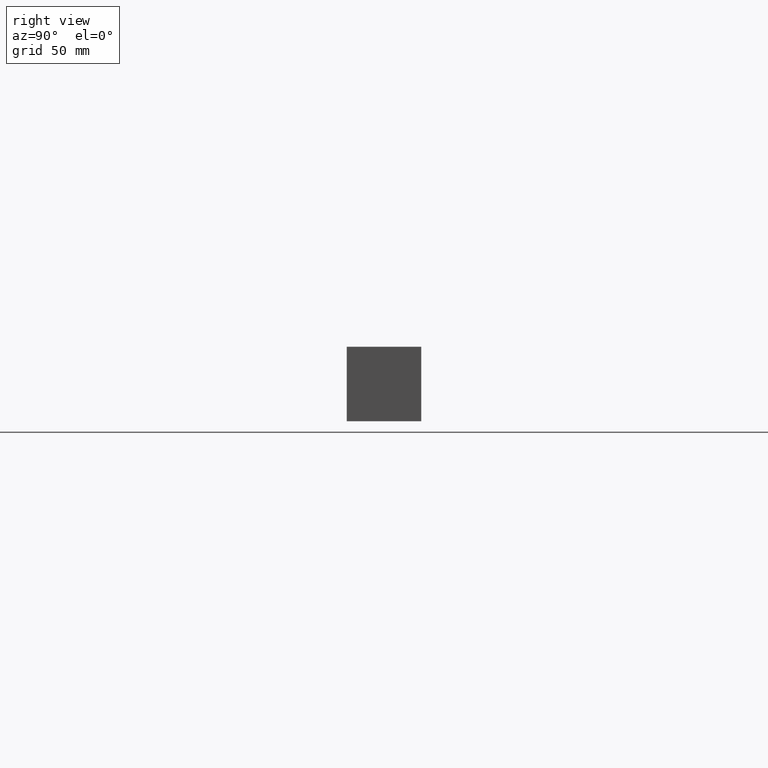
[diagram: clean part render]
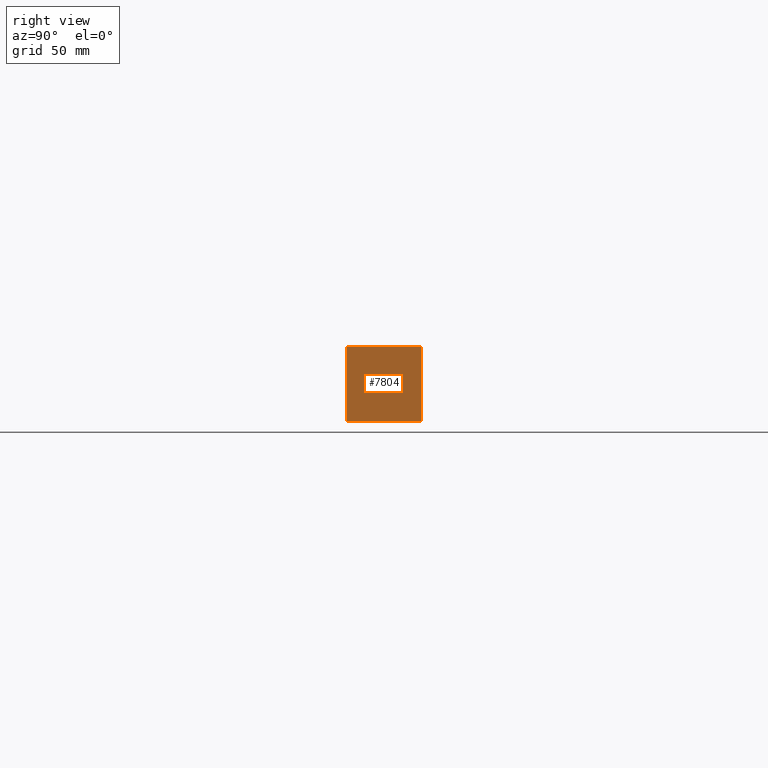
[diagram: same view with one face highlighted and labeled with its STEP entity id]
A machine part, right view. The second image highlights one B-rep face of the part: STEP entity #7804.
In plain terms, the highlighted planar face has unit normal (1, 0, 0).
Its self-contained STEP definition (entity closure, byte-faithful):
#512=PLANE('',#8245);
#912=FACE_OUTER_BOUND('',#1373,.T.);
#1373=EDGE_LOOP('',(#6946,#6947,#6948,#6949));
#1646=LINE('',#12151,#2349);
#2090=LINE('',#13504,#2793);
#2091=LINE('',#13507,#2794);
#2092=LINE('',#13508,#2795);
#2349=VECTOR('',#8626,10.);
#2793=VECTOR('',#9796,10.);
#2794=VECTOR('',#9799,10.);
#2795=VECTOR('',#9800,10.);
#3340=VERTEX_POINT('',#12148);
#3341=VERTEX_POINT('',#12150);
#3759=VERTEX_POINT('',#13502);
#3760=VERTEX_POINT('',#13506);
#4230=EDGE_CURVE('',#3340,#3341,#1646,.T.);
#4832=EDGE_CURVE('',#3759,#3341,#2090,.T.);
#4833=EDGE_CURVE('',#3760,#3759,#2091,.T.);
#4834=EDGE_CURVE('',#3760,#3340,#2092,.T.);
#6946=ORIENTED_EDGE('',*,*,#4833,.T.);
#6947=ORIENTED_EDGE('',*,*,#4832,.T.);
#6948=ORIENTED_EDGE('',*,*,#4230,.F.);
#6949=ORIENTED_EDGE('',*,*,#4834,.F.);
#7804=ADVANCED_FACE('',(#912),#512,.T.);
#8245=AXIS2_PLACEMENT_3D('',#13505,#9797,#9798);
#8626=DIRECTION('',(0.,1.,0.));
#9796=DIRECTION('',(0.,0.,1.));
#9797=DIRECTION('center_axis',(1.,0.,0.));
#9798=DIRECTION('ref_axis',(0.,1.,0.));
#9799=DIRECTION('',(0.,1.,0.));
#9800=DIRECTION('',(0.,0.,1.));
#12148=CARTESIAN_POINT('',(431.8,0.,44.45));
#12150=CARTESIAN_POINT('',(431.8,44.45,44.45));
#12151=CARTESIAN_POINT('',(431.8,0.,44.45));
#13502=CARTESIAN_POINT('',(431.8,44.45,0.));
#13504=CARTESIAN_POINT('',(431.8,44.45,0.));
#13505=CARTESIAN_POINT('Origin',(431.8,0.,0.));
#13506=CARTESIAN_POINT('',(431.8,0.,0.));
#13507=CARTESIAN_POINT('',(431.8,0.,0.));
#13508=CARTESIAN_POINT('',(431.8,0.,0.));